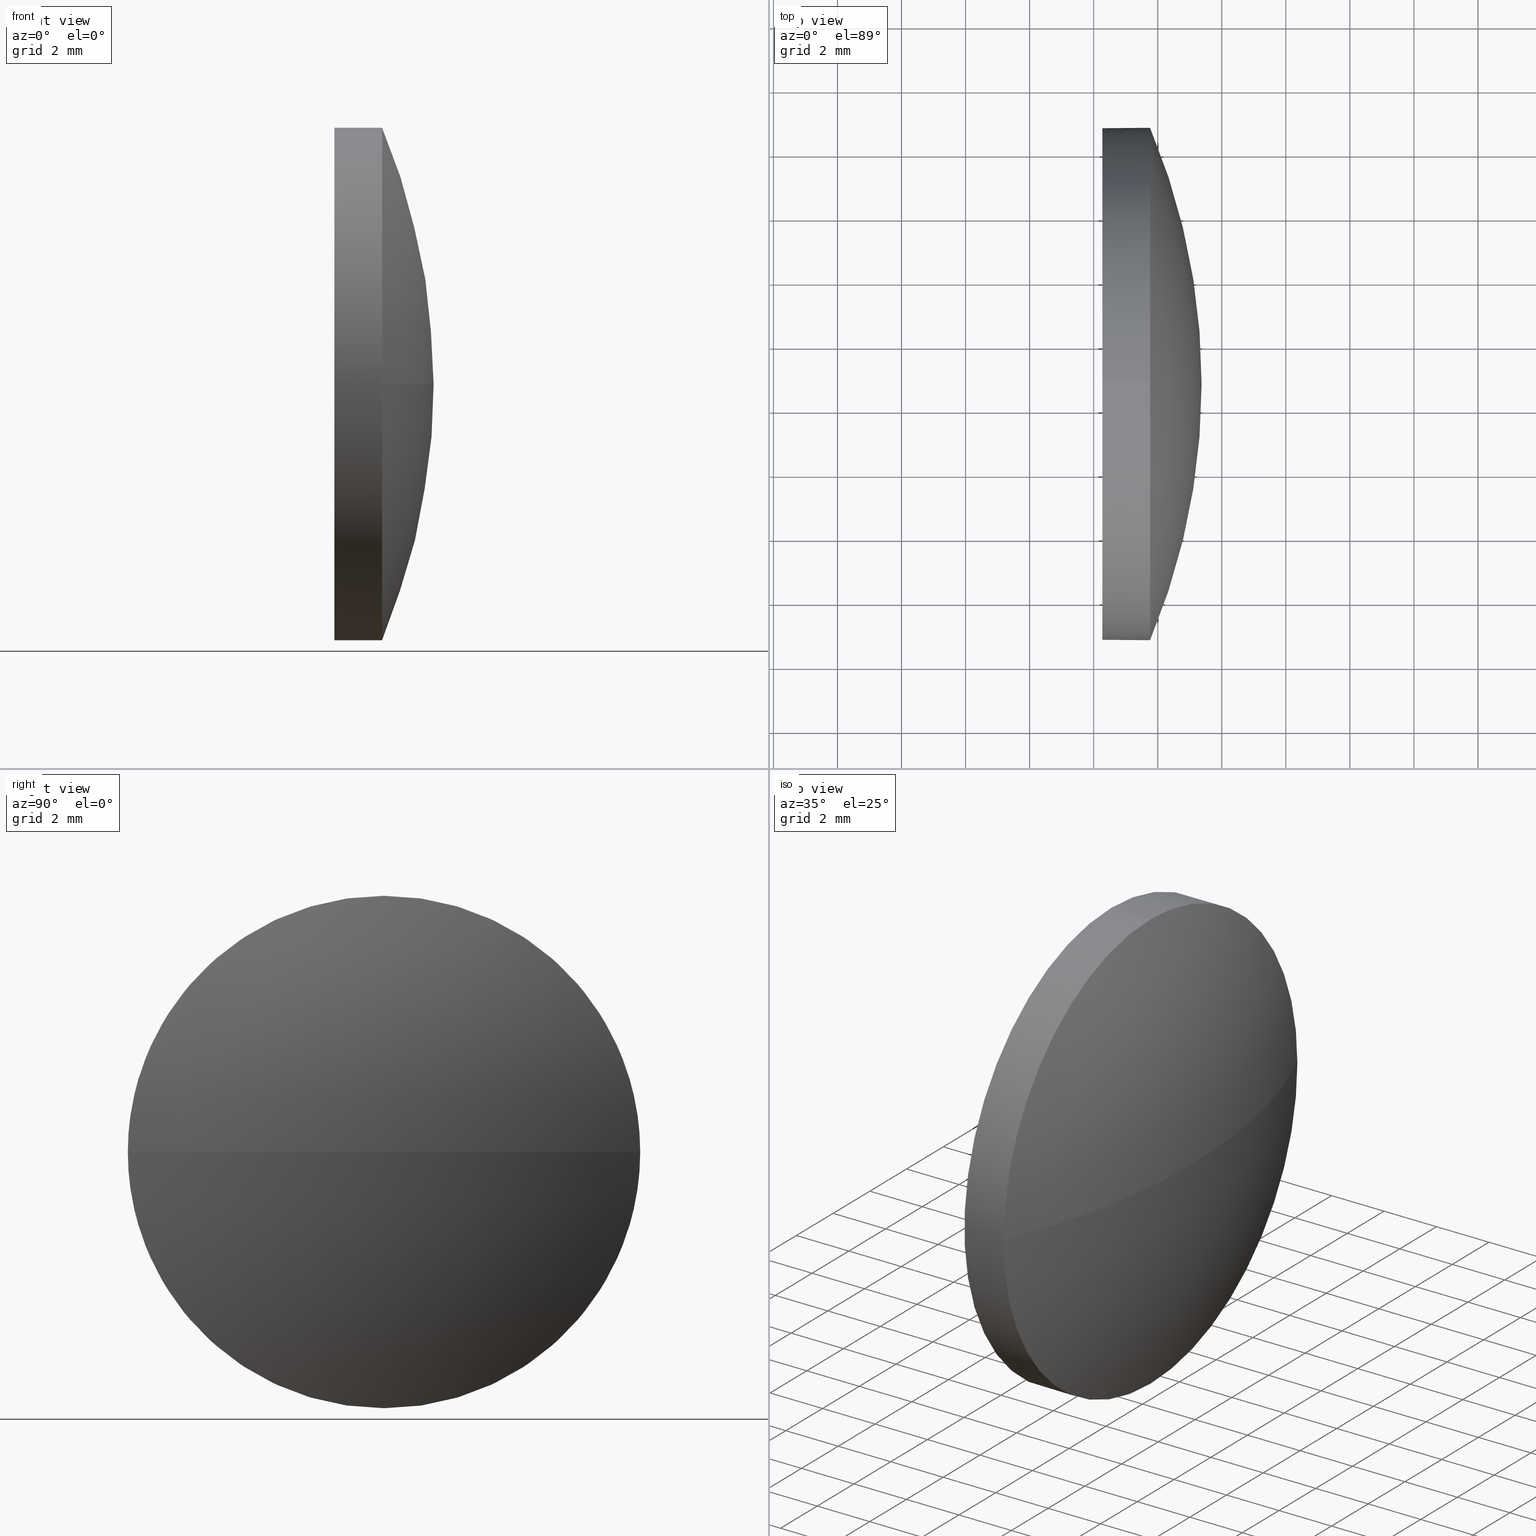
[diagram: canonical four-view strip — front | top / right | iso, engineering-drawing reading convention]
A machine part, canonical four-view strip (front | top / right | iso — engineering-drawing reading convention). The complete STEP part file that produces these views, byte-faithful:
ISO-10303-21;
HEADER;
FILE_DESCRIPTION (( 'STEP AP214' ),
    '1' );
FILE_NAME ('100200.STEP',
    '2019-05-22T06:53:13',
    ( '' ),
    ( '' ),
    'SwSTEP 2.0',
    'SolidWorks 2016',
    '' );
FILE_SCHEMA (( 'AUTOMOTIVE_DESIGN' ));
ENDSEC;

DATA;
#1 = DIRECTION ( 'NONE',  ( 0.0000000000000000000, 0.0000000000000000000, 1.000000000000000000 ) ) ;
#2 = CYLINDRICAL_SURFACE ( 'NONE', #174, 8.000000000000000000 ) ;
#3 = SPHERICAL_SURFACE ( 'NONE', #64, 20.68077639751554000 ) ;
#4 = DIRECTION ( 'NONE',  ( 0.0000000000000000000, 1.000000000000000000, 0.0000000000000000000 ) ) ;
#5 = AXIS2_PLACEMENT_3D ( 'NONE', #98, #152, #180 ) ;
#6 = ADVANCED_FACE ( 'NONE', ( #35 ), #155, .F. ) ;
#7 = CARTESIAN_POINT ( 'NONE',  ( 422.6905016260999400, 0.7681557501930390600, 0.0000000000000000000 ) ) ;
#8 = ORIENTED_EDGE ( 'NONE', *, *, #129, .F. ) ;
#9 = EDGE_CURVE ( 'NONE', #159, #77, #82, .T. ) ;
#10 = CARTESIAN_POINT ( 'NONE',  ( 422.6905016260999400, 0.7681557501930390600, 0.0000000000000000000 ) ) ;
#11 = PRODUCT_DEFINITION ( 'δ֪', '', #131, #53 ) ;
#12 = APPLICATION_PROTOCOL_DEFINITION ( 'draft international standard', 'automotive_design', 1998, #55 ) ;
#13 = VECTOR ( 'NONE', #148, 1000.000000000000000 ) ;
#14 = ORIENTED_EDGE ( 'NONE', *, *, #94, .F. ) ;
#15 = ORIENTED_EDGE ( 'NONE', *, *, #114, .F. ) ;
#16 = CARTESIAN_POINT ( 'NONE',  ( 440.2712780236154800, 0.7681557501930741400, 0.0000000000000000000 ) ) ;
#17 = PRODUCT_CONTEXT ( 'NONE', #28, 'mechanical' ) ;
#18 =( LENGTH_UNIT ( ) NAMED_UNIT ( * ) SI_UNIT ( .MILLI., .METRE. ) );
#19 = FACE_OUTER_BOUND ( 'NONE', #173, .T. ) ;
#20 = ORIENTED_EDGE ( 'NONE', *, *, #44, .F. ) ;
#21 = SURFACE_STYLE_USAGE ( .BOTH. , #118 ) ;
#22 = ADVANCED_FACE ( 'NONE', ( #105 ), #3, .T. ) ;
#23 = DIRECTION ( 'NONE',  ( 1.000000000000000000, 0.0000000000000000000, 0.0000000000000000000 ) ) ;
#24 = VERTEX_POINT ( 'NONE', #126 ) ;
#25 = DIRECTION ( 'NONE',  ( -1.000000000000000000, -0.0000000000000000000, -0.0000000000000000000 ) ) ;
#26 = AXIS2_PLACEMENT_3D ( 'NONE', #166, #151, #39 ) ;
#27 = PRESENTATION_STYLE_ASSIGNMENT (( #87 ) ) ;
#28 = APPLICATION_CONTEXT ( 'automotive_design' ) ;
#29 = MANIFOLD_SOLID_BREP ( '��ת1', #186 ) ;
#30 = CARTESIAN_POINT ( 'NONE',  ( 422.6905016260999400, 0.7681557501930390600, 0.0000000000000000000 ) ) ;
#31 = MECHANICAL_DESIGN_GEOMETRIC_PRESENTATION_REPRESENTATION (  '', ( #112 ), #36 ) ;
#32 =( LENGTH_UNIT ( ) NAMED_UNIT ( * ) SI_UNIT ( .MILLI., .METRE. ) );
#33 =( LENGTH_UNIT ( ) NAMED_UNIT ( * ) SI_UNIT ( .MILLI., .METRE. ) );
#34 = CIRCLE ( 'NONE', #99, 20.68077639751554000 ) ;
#35 = FACE_OUTER_BOUND ( 'NONE', #74, .T. ) ;
#36 =( GEOMETRIC_REPRESENTATION_CONTEXT ( 3 ) GLOBAL_UNCERTAINTY_ASSIGNED_CONTEXT ( ( #156 ) ) GLOBAL_UNIT_ASSIGNED_CONTEXT ( ( #32, #169, #137 ) ) REPRESENTATION_CONTEXT ( 'NONE', 'WORKASPACE' ) );
#37 = VERTEX_POINT ( 'NONE', #106 ) ;
#38 = AXIS2_PLACEMENT_3D ( 'NONE', #71, #177, #134 ) ;
#39 = DIRECTION ( 'NONE',  ( 0.0000000000000000000, 0.0000000000000000000, 1.000000000000000000 ) ) ;
#40 = CARTESIAN_POINT ( 'NONE',  ( 441.7612780236154900, -7.231844249806953500, -9.797174393178815800E-016 ) ) ;
#41 = ORIENTED_EDGE ( 'NONE', *, *, #88, .T. ) ;
#42 = DIRECTION ( 'NONE',  ( 0.0000000000000000000, 0.0000000000000000000, 1.000000000000000000 ) ) ;
#43 = ORIENTED_EDGE ( 'NONE', *, *, #94, .T. ) ;
#44 = EDGE_CURVE ( 'NONE', #37, #159, #185, .T. ) ;
#45 = EDGE_CURVE ( 'NONE', #37, #65, #51, .T. ) ;
#46 = SHAPE_DEFINITION_REPRESENTATION ( #172, #117 ) ;
#47 = ORIENTED_EDGE ( 'NONE', *, *, #44, .T. ) ;
#48 = AXIS2_PLACEMENT_3D ( 'NONE', #81, #80, #163 ) ;
#49 = FACE_OUTER_BOUND ( 'NONE', #116, .T. ) ;
#50 = ORIENTED_EDGE ( 'NONE', *, *, #114, .T. ) ;
#51 = LINE ( 'NONE', #123, #160 ) ;
#52 = ORIENTED_EDGE ( 'NONE', *, *, #102, .T. ) ;
#53 = PRODUCT_DEFINITION_CONTEXT ( 'detailed design', #55, 'design' ) ;
#54 = APPLICATION_PROTOCOL_DEFINITION ( 'draft international standard', 'automotive_design', 1998, #28 ) ;
#55 = APPLICATION_CONTEXT ( 'automotive_design' ) ;
#56 = ORIENTED_EDGE ( 'NONE', *, *, #67, .T. ) ;
#57 = STYLED_ITEM ( 'NONE', ( #27 ), #29 ) ;
#58 = DIRECTION ( 'NONE',  ( 0.0000000000000000000, 0.0000000000000000000, 1.000000000000000000 ) ) ;
#59 = DIRECTION ( 'NONE',  ( -1.000000000000000000, -0.0000000000000000000, -0.0000000000000000000 ) ) ;
#60 = CIRCLE ( 'NONE', #38, 20.68077639751553300 ) ;
#61 = ORIENTED_EDGE ( 'NONE', *, *, #67, .F. ) ;
#62 = ADVANCED_FACE ( 'NONE', ( #146 ), #2, .T. ) ;
#63 = CARTESIAN_POINT ( 'NONE',  ( 440.2712780236154800, 0.7681557501930741400, 0.0000000000000000000 ) ) ;
#64 = AXIS2_PLACEMENT_3D ( 'NONE', #10, #170, #108 ) ;
#65 = VERTEX_POINT ( 'NONE', #149 ) ;
#66 = UNCERTAINTY_MEASURE_WITH_UNIT (LENGTH_MEASURE( 1.000000000000000100E-005 ), #18, 'distance_accuracy_value', 'NONE');
#67 = EDGE_CURVE ( 'NONE', #65, #24, #92, .T. ) ;
#68 = DIRECTION ( 'NONE',  ( -1.000000000000000000, -0.0000000000000000000, -0.0000000000000000000 ) ) ;
#69 = CARTESIAN_POINT ( 'NONE',  ( 438.6233055506239700, 0.7681557501930741400, 0.0000000000000000000 ) ) ;
#70 = DIRECTION ( 'NONE',  ( 0.0000000000000000000, 0.0000000000000000000, 1.000000000000000000 ) ) ;
#71 = CARTESIAN_POINT ( 'NONE',  ( 422.6905016260999400, 0.7681557501930390600, 0.0000000000000000000 ) ) ;
#72 = SPHERICAL_SURFACE ( 'NONE', #85, 20.68077639751554000 ) ;
#73 = AXIS2_PLACEMENT_3D ( 'NONE', #16, #68, #70 ) ;
#74 = EDGE_LOOP ( 'NONE', ( #43, #56 ) ) ;
#75 = DIRECTION ( 'NONE',  ( 1.000000000000000000, 0.0000000000000000000, 0.0000000000000000000 ) ) ;
#76 =( NAMED_UNIT ( * ) SI_UNIT ( $, .STERADIAN. ) SOLID_ANGLE_UNIT ( ) );
#77 = VERTEX_POINT ( 'NONE', #115 ) ;
#78 = AXIS2_PLACEMENT_3D ( 'NONE', #181, #59, #178 ) ;
#79 = ORIENTED_EDGE ( 'NONE', *, *, #139, .F. ) ;
#80 = DIRECTION ( 'NONE',  ( -1.000000000000000000, -0.0000000000000000000, -0.0000000000000000000 ) ) ;
#81 = CARTESIAN_POINT ( 'NONE',  ( 441.7612780236154900, 0.7681557501930741400, 0.0000000000000000000 ) ) ;
#82 = CIRCLE ( 'NONE', #111, 8.000000000000000000 ) ;
#83 = CARTESIAN_POINT ( 'NONE',  ( 441.7612780236154900, 8.768155750193066900, 0.0000000000000000000 ) ) ;
#84 = DIRECTION ( 'NONE',  ( 0.0000000000000000000, 1.000000000000000000, 1.224646799147353200E-016 ) ) ;
#85 = AXIS2_PLACEMENT_3D ( 'NONE', #30, #133, #4 ) ;
#86 = CARTESIAN_POINT ( 'NONE',  ( 0.0000000000000000000, 0.0000000000000000000, 0.0000000000000000000 ) ) ;
#87 = SURFACE_STYLE_USAGE ( .BOTH. , #154 ) ;
#88 = EDGE_CURVE ( 'NONE', #182, #120, #60, .T. ) ;
#89 = ORIENTED_EDGE ( 'NONE', *, *, #9, .F. ) ;
#90 = DIRECTION ( 'NONE',  ( 0.0000000000000000000, 0.0000000000000000000, -1.000000000000000000 ) ) ;
#91 = AXIS2_PLACEMENT_3D ( 'NONE', #150, #138, #58 ) ;
#92 = CIRCLE ( 'NONE', #73, 8.000000000000000000 ) ;
#93 = ORIENTED_EDGE ( 'NONE', *, *, #129, .T. ) ;
#94 = EDGE_CURVE ( 'NONE', #24, #65, #103, .T. ) ;
#95 =( GEOMETRIC_REPRESENTATION_CONTEXT ( 3 ) GLOBAL_UNCERTAINTY_ASSIGNED_CONTEXT ( ( #141 ) ) GLOBAL_UNIT_ASSIGNED_CONTEXT ( ( #33, #171, #76 ) ) REPRESENTATION_CONTEXT ( 'NONE', 'WORKASPACE' ) );
#96 = PRODUCT_RELATED_PRODUCT_CATEGORY ( 'part', '', ( #107 ) ) ;
#97 = SURFACE_STYLE_FILL_AREA ( #122 ) ;
#98 = CARTESIAN_POINT ( 'NONE',  ( 438.6233055506239700, 0.7681557501930741400, 0.0000000000000000000 ) ) ;
#99 = AXIS2_PLACEMENT_3D ( 'NONE', #7, #135, #84 ) ;
#100 =( NAMED_UNIT ( * ) SI_UNIT ( $, .STERADIAN. ) SOLID_ANGLE_UNIT ( ) );
#101 =( NAMED_UNIT ( * ) PLANE_ANGLE_UNIT ( ) SI_UNIT ( $, .RADIAN. ) );
#102 = EDGE_CURVE ( 'NONE', #77, #24, #176, .T. ) ;
#103 = CIRCLE ( 'NONE', #78, 8.000000000000000000 ) ;
#104 = DIRECTION ( 'NONE',  ( 0.0000000000000000000, 0.0000000000000000000, 1.000000000000000000 ) ) ;
#105 = FACE_OUTER_BOUND ( 'NONE', #153, .T. ) ;
#106 = CARTESIAN_POINT ( 'NONE',  ( 441.7612780236154900, 0.7681557501930751400, -8.000000000000000000 ) ) ;
#107 = PRODUCT ( '100200', '100200', '', ( #17 ) ) ;
#108 = DIRECTION ( 'NONE',  ( 0.0000000000000000000, 1.000000000000000000, 0.0000000000000000000 ) ) ;
#109 = ADVANCED_FACE ( 'NONE', ( #49 ), #72, .T. ) ;
#110 = CYLINDRICAL_SURFACE ( 'NONE', #5, 8.000000000000000000 ) ;
#111 = AXIS2_PLACEMENT_3D ( 'NONE', #125, #140, #42 ) ;
#112 = STYLED_ITEM ( 'NONE', ( #130 ), #117 ) ;
#113 = COLOUR_RGB ( '',1.000000000000000000, 1.000000000000000000, 1.000000000000000000 ) ;
#114 = EDGE_CURVE ( 'NONE', #77, #120, #179, .T. ) ;
#115 = CARTESIAN_POINT ( 'NONE',  ( 441.7612780236154900, 0.7681557501930741400, 8.000000000000000000 ) ) ;
#116 = EDGE_LOOP ( 'NONE', ( #79, #41, #15, #89 ) ) ;
#117 = ADVANCED_BREP_SHAPE_REPRESENTATION ( '100200', ( #29, #143 ), #144 ) ;
#118 = SURFACE_SIDE_STYLE ('',( #132 ) ) ;
#119 = AXIS2_PLACEMENT_3D ( 'NONE', #63, #75, #90 ) ;
#120 = VERTEX_POINT ( 'NONE', #83 ) ;
#121 = FILL_AREA_STYLE ('',( #165 ) ) ;
#122 = FILL_AREA_STYLE ('',( #183 ) ) ;
#123 = CARTESIAN_POINT ( 'NONE',  ( 438.6233055506239700, 0.7681557501930751400, -8.000000000000000000 ) ) ;
#124 = ADVANCED_FACE ( 'NONE', ( #19 ), #110, .T. ) ;
#125 = CARTESIAN_POINT ( 'NONE',  ( 441.7612780236154900, 0.7681557501930741400, 0.0000000000000000000 ) ) ;
#126 = CARTESIAN_POINT ( 'NONE',  ( 440.2712780236154800, 0.7681557501930741400, 8.000000000000000000 ) ) ;
#127 = MECHANICAL_DESIGN_GEOMETRIC_PRESENTATION_REPRESENTATION (  '', ( #57 ), #95 ) ;
#128 = EDGE_LOOP ( 'NONE', ( #93, #147, #14, #161, #50 ) ) ;
#129 = EDGE_CURVE ( 'NONE', #120, #37, #167, .T. ) ;
#130 = PRESENTATION_STYLE_ASSIGNMENT (( #21 ) ) ;
#131 = PRODUCT_DEFINITION_FORMATION_WITH_SPECIFIED_SOURCE ( '�κ�', '', #107, .NOT_KNOWN. ) ;
#132 = SURFACE_STYLE_FILL_AREA ( #121 ) ;
#133 = DIRECTION ( 'NONE',  ( -0.0000000000000000000, 0.0000000000000000000, -1.000000000000000000 ) ) ;
#134 = DIRECTION ( 'NONE',  ( 1.000000000000000000, 0.0000000000000000000, 0.0000000000000000000 ) ) ;
#135 = DIRECTION ( 'NONE',  ( 0.0000000000000000000, 1.224646799147353200E-016, -1.000000000000000000 ) ) ;
#136 = ORIENTED_EDGE ( 'NONE', *, *, #88, .F. ) ;
#137 =( NAMED_UNIT ( * ) SI_UNIT ( $, .STERADIAN. ) SOLID_ANGLE_UNIT ( ) );
#138 = DIRECTION ( 'NONE',  ( -1.000000000000000000, -0.0000000000000000000, -0.0000000000000000000 ) ) ;
#139 = EDGE_CURVE ( 'NONE', #182, #159, #34, .T. ) ;
#140 = DIRECTION ( 'NONE',  ( -1.000000000000000000, -0.0000000000000000000, -0.0000000000000000000 ) ) ;
#141 = UNCERTAINTY_MEASURE_WITH_UNIT (LENGTH_MEASURE( 1.000000000000000100E-005 ), #33, 'distance_accuracy_value', 'NONE');
#142 = COLOUR_RGB ( '',1.000000000000000000, 1.000000000000000000, 1.000000000000000000 ) ;
#143 = AXIS2_PLACEMENT_3D ( 'NONE', #86, #104, #23 ) ;
#144 =( GEOMETRIC_REPRESENTATION_CONTEXT ( 3 ) GLOBAL_UNCERTAINTY_ASSIGNED_CONTEXT ( ( #66 ) ) GLOBAL_UNIT_ASSIGNED_CONTEXT ( ( #18, #101, #100 ) ) REPRESENTATION_CONTEXT ( 'NONE', 'WORKASPACE' ) );
#145 = DIRECTION ( 'NONE',  ( -1.000000000000000000, -0.0000000000000000000, -0.0000000000000000000 ) ) ;
#146 = FACE_OUTER_BOUND ( 'NONE', #128, .T. ) ;
#147 = ORIENTED_EDGE ( 'NONE', *, *, #45, .T. ) ;
#148 = DIRECTION ( 'NONE',  ( -1.000000000000000000, -0.0000000000000000000, -0.0000000000000000000 ) ) ;
#149 = CARTESIAN_POINT ( 'NONE',  ( 440.2712780236154800, 0.7681557501930751400, -8.000000000000000000 ) ) ;
#150 = CARTESIAN_POINT ( 'NONE',  ( 441.7612780236154900, 0.7681557501930741400, 0.0000000000000000000 ) ) ;
#151 = DIRECTION ( 'NONE',  ( -1.000000000000000000, -0.0000000000000000000, -0.0000000000000000000 ) ) ;
#152 = DIRECTION ( 'NONE',  ( -1.000000000000000000, -0.0000000000000000000, -0.0000000000000000000 ) ) ;
#153 = EDGE_LOOP ( 'NONE', ( #136, #158, #20, #8 ) ) ;
#154 = SURFACE_SIDE_STYLE ('',( #97 ) ) ;
#155 = PLANE ( 'NONE',  #119 ) ;
#156 = UNCERTAINTY_MEASURE_WITH_UNIT (LENGTH_MEASURE( 1.000000000000000100E-005 ), #32, 'distance_accuracy_value', 'NONE');
#157 = PRESENTATION_LAYER_ASSIGNMENT (  '', '', ( #57 ) ) ;
#158 = ORIENTED_EDGE ( 'NONE', *, *, #139, .T. ) ;
#159 = VERTEX_POINT ( 'NONE', #40 ) ;
#160 = VECTOR ( 'NONE', #25, 1000.000000000000000 ) ;
#161 = ORIENTED_EDGE ( 'NONE', *, *, #102, .F. ) ;
#162 = CARTESIAN_POINT ( 'NONE',  ( 438.6233055506239700, 0.7681557501930741400, 8.000000000000000000 ) ) ;
#163 = DIRECTION ( 'NONE',  ( 0.0000000000000000000, 0.0000000000000000000, 1.000000000000000000 ) ) ;
#164 = CARTESIAN_POINT ( 'NONE',  ( 443.3712780236155000, 0.7681557501930403900, 0.0000000000000000000 ) ) ;
#165 = FILL_AREA_STYLE_COLOUR ( '', #113 ) ;
#166 = CARTESIAN_POINT ( 'NONE',  ( 441.7612780236154900, 0.7681557501930741400, 0.0000000000000000000 ) ) ;
#167 = CIRCLE ( 'NONE', #91, 8.000000000000000000 ) ;
#168 = ORIENTED_EDGE ( 'NONE', *, *, #45, .F. ) ;
#169 =( NAMED_UNIT ( * ) PLANE_ANGLE_UNIT ( ) SI_UNIT ( $, .RADIAN. ) );
#170 = DIRECTION ( 'NONE',  ( -0.0000000000000000000, 0.0000000000000000000, -1.000000000000000000 ) ) ;
#171 =( NAMED_UNIT ( * ) PLANE_ANGLE_UNIT ( ) SI_UNIT ( $, .RADIAN. ) );
#172 = PRODUCT_DEFINITION_SHAPE ( 'NONE', 'NONE',  #11 ) ;
#173 = EDGE_LOOP ( 'NONE', ( #168, #47, #175, #52, #61 ) ) ;
#174 = AXIS2_PLACEMENT_3D ( 'NONE', #69, #145, #1 ) ;
#175 = ORIENTED_EDGE ( 'NONE', *, *, #9, .T. ) ;
#176 = LINE ( 'NONE', #162, #13 ) ;
#177 = DIRECTION ( 'NONE',  ( -0.0000000000000000000, 0.0000000000000000000, 1.000000000000000000 ) ) ;
#178 = DIRECTION ( 'NONE',  ( 0.0000000000000000000, 0.0000000000000000000, 1.000000000000000000 ) ) ;
#179 = CIRCLE ( 'NONE', #26, 8.000000000000000000 ) ;
#180 = DIRECTION ( 'NONE',  ( 0.0000000000000000000, 0.0000000000000000000, 1.000000000000000000 ) ) ;
#181 = CARTESIAN_POINT ( 'NONE',  ( 440.2712780236154800, 0.7681557501930741400, 0.0000000000000000000 ) ) ;
#182 = VERTEX_POINT ( 'NONE', #164 ) ;
#183 = FILL_AREA_STYLE_COLOUR ( '', #142 ) ;
#184 = PRESENTATION_LAYER_ASSIGNMENT (  '', '', ( #112 ) ) ;
#185 = CIRCLE ( 'NONE', #48, 8.000000000000000000 ) ;
#186 = CLOSED_SHELL ( 'NONE', ( #62, #22, #109, #124, #6 ) ) ;
ENDSEC;
END-ISO-10303-21;
